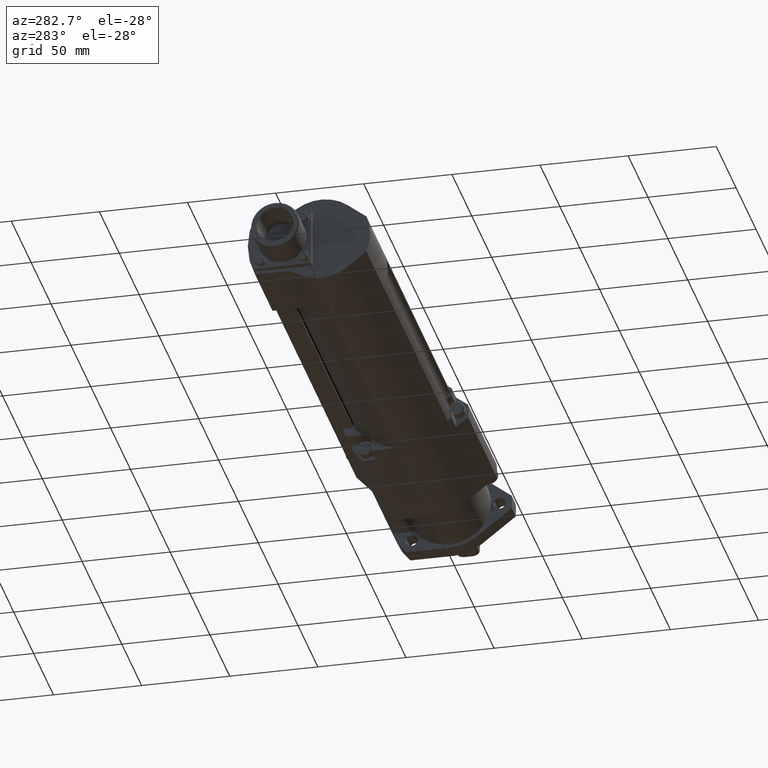
[diagram: clean part render]
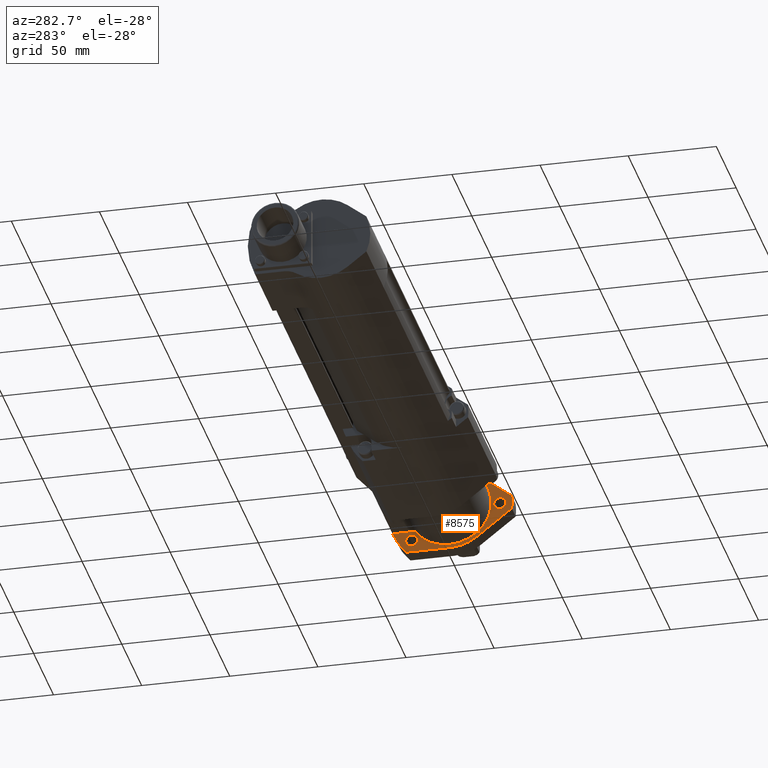
[diagram: same view with one face highlighted and labeled with its STEP entity id]
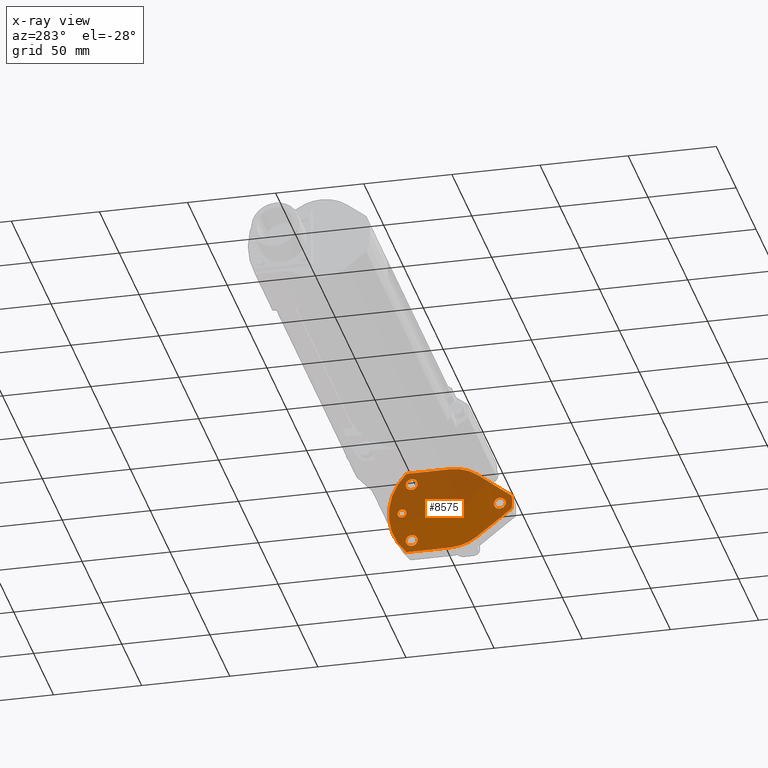
[diagram: x-ray of the same camera — body ghosted, the highlighted face saturated]
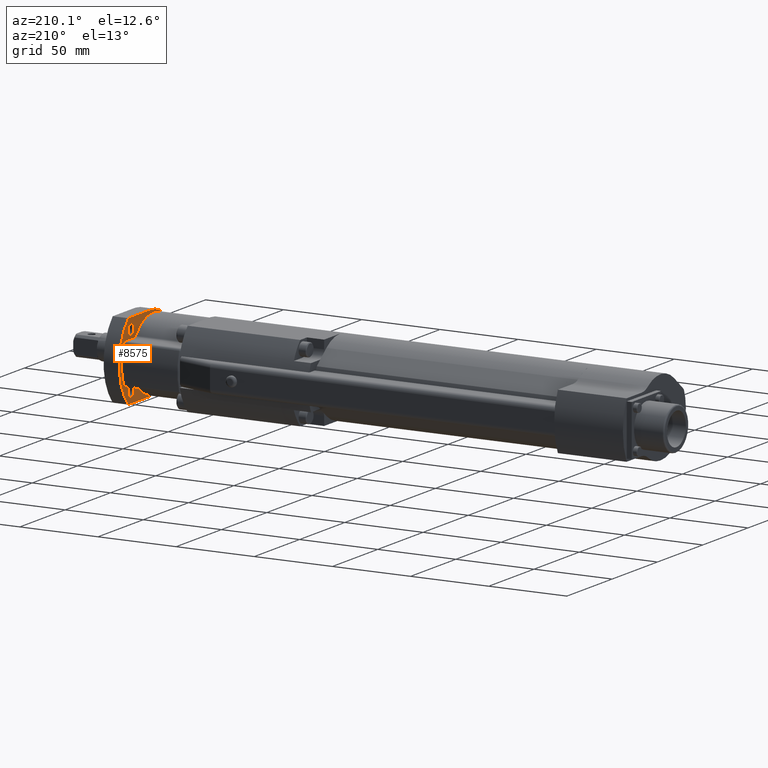
[diagram: same view with one face highlighted and labeled with its STEP entity id]
A machine part, auxiliary view. The second image highlights one B-rep face of the part: STEP entity #8575.
The next image is the same camera in x-ray: the body ghosted, the highlighted face saturated — about 49% of this face is hidden behind the body in this view.
A second angle (auxiliary view) of the same face is appended — the face is thin or edge-on in the first view.
In plain terms, the highlighted planar face has unit normal (-1, 0, 0).
Its self-contained STEP definition (entity closure, byte-faithful):
#27 = EDGE_LOOP ( 'NONE', ( #1205, #4980 ) ) ;
#102 = CIRCLE ( 'NONE', #8776, 35.00000000000000000 ) ;
#265 = VERTEX_POINT ( 'NONE', #2433 ) ;
#348 = EDGE_CURVE ( 'NONE', #5478, #7927, #7594, .T. ) ;
#368 = DIRECTION ( 'NONE',  ( -1.000000000000000000, 0.0000000000000000000, 0.0000000000000000000 ) ) ;
#407 = CIRCLE ( 'NONE', #7169, 3.399999999999996800 ) ;
#409 = VERTEX_POINT ( 'NONE', #604 ) ;
#445 = CARTESIAN_POINT ( 'NONE',  ( -10.00000000000000000, 0.0000000000000000000, -24.50000000000000000 ) ) ;
#451 = CARTESIAN_POINT ( 'NONE',  ( -10.00000000000000000, 27.50000000000000000, 0.0000000000000000000 ) ) ;
#462 = AXIS2_PLACEMENT_3D ( 'NONE', #8404, #4073, #9112 ) ;
#559 = CARTESIAN_POINT ( 'NONE',  ( -10.00000000000000000, -34.78003453779442800, -3.917805195492370300 ) ) ;
#601 = EDGE_CURVE ( 'NONE', #4804, #2641, #7945, .T. ) ;
#604 = CARTESIAN_POINT ( 'NONE',  ( -10.00000000000000000, 0.0000000000000000000, 24.50000000000000400 ) ) ;
#605 = DIRECTION ( 'NONE',  ( 1.000000000000000000, -0.0000000000000000000, -0.0000000000000000000 ) ) ;
#630 = CARTESIAN_POINT ( 'NONE',  ( -10.00000000000000000, -28.00000000000000000, 3.399999999999993700 ) ) ;
#946 = EDGE_CURVE ( 'NONE', #2018, #5226, #3061, .T. ) ;
#987 = ORIENTED_EDGE ( 'NONE', *, *, #2763, .T. ) ;
#1016 = PLANE ( 'NONE',  #5037 ) ;
#1148 = ORIENTED_EDGE ( 'NONE', *, *, #2154, .T. ) ;
#1179 = DIRECTION ( 'NONE',  ( 0.0000000000000000000, 0.0000000000000000000, -1.000000000000000000 ) ) ;
#1205 = ORIENTED_EDGE ( 'NONE', *, *, #946, .T. ) ;
#1291 = LINE ( 'NONE', #8154, #6778 ) ;
#1342 = CARTESIAN_POINT ( 'NONE',  ( -10.00000000000000000, -28.00000000000000000, -3.400000000000000400 ) ) ;
#1467 = CARTESIAN_POINT ( 'NONE',  ( -10.00000000000000000, 22.00000000000000000, -20.89999999999999500 ) ) ;
#1508 = ORIENTED_EDGE ( 'NONE', *, *, #4577, .T. ) ;
#1676 = EDGE_CURVE ( 'NONE', #7927, #8126, #102, .T. ) ;
#1690 = DIRECTION ( 'NONE',  ( 1.000000000000000000, -0.0000000000000000000, -0.0000000000000000000 ) ) ;
#1723 = DIRECTION ( 'NONE',  ( -1.000000000000000000, 0.0000000000000000000, 0.0000000000000000000 ) ) ;
#1819 = CARTESIAN_POINT ( 'NONE',  ( -10.00000000000000000, -34.78003453779442800, -3.917805195492370300 ) ) ;
#1836 = CARTESIAN_POINT ( 'NONE',  ( -10.00000000000000000, 0.0000000000000000000, 0.0000000000000000000 ) ) ;
#1847 = CIRCLE ( 'NONE', #6932, 35.00000000000000700 ) ;
#1854 = EDGE_CURVE ( 'NONE', #5226, #2018, #407, .T. ) ;
#1880 = AXIS2_PLACEMENT_3D ( 'NONE', #5982, #1690, #6717 ) ;
#1889 = EDGE_CURVE ( 'NONE', #265, #6668, #1847, .T. ) ;
#1919 = CARTESIAN_POINT ( 'NONE',  ( -10.00000000000000000, 0.0000000000000000000, 0.0000000000000000000 ) ) ;
#1925 = FACE_BOUND ( 'NONE', #3561, .T. ) ;
#1934 = DIRECTION ( 'NONE',  ( 1.000000000000000000, -0.0000000000000000000, -0.0000000000000000000 ) ) ;
#1937 = CARTESIAN_POINT ( 'NONE',  ( -10.00000000000000000, 27.50000000000000000, 2.499999999999998700 ) ) ;
#1944 = DIRECTION ( 'NONE',  ( 1.000000000000000000, -0.0000000000000000000, -0.0000000000000000000 ) ) ;
#2018 = VERTEX_POINT ( 'NONE', #5571 ) ;
#2033 = EDGE_CURVE ( 'NONE', #4833, #6675, #6470, .T. ) ;
#2072 = CARTESIAN_POINT ( 'NONE',  ( -10.00000000000000000, -34.78003453779448500, 3.917805195491889800 ) ) ;
#2076 = AXIS2_PLACEMENT_3D ( 'NONE', #3823, #8869, #4542 ) ;
#2154 = EDGE_CURVE ( 'NONE', #7498, #7171, #5323, .T. ) ;
#2165 = DIRECTION ( 'NONE',  ( -1.000000000000000000, 0.0000000000000000000, 0.0000000000000000000 ) ) ;
#2269 = CARTESIAN_POINT ( 'NONE',  ( -10.00000000000000000, 22.00000000000000000, -14.10000000000000100 ) ) ;
#2341 = ORIENTED_EDGE ( 'NONE', *, *, #348, .T. ) ;
#2433 = CARTESIAN_POINT ( 'NONE',  ( -10.00000000000000000, 24.99499949989998600, 24.50000000000000000 ) ) ;
#2438 = DIRECTION ( 'NONE',  ( 1.000000000000000000, -0.0000000000000000000, -0.0000000000000000000 ) ) ;
#2479 = CARTESIAN_POINT ( 'NONE',  ( -10.00000000000000000, 22.00000000000000000, 20.90000000000000200 ) ) ;
#2525 = VERTEX_POINT ( 'NONE', #6917 ) ;
#2541 = DIRECTION ( 'NONE',  ( 0.0000000000000000000, 0.0000000000000000000, 1.000000000000000000 ) ) ;
#2637 = DIRECTION ( 'NONE',  ( 0.0000000000000000000, 0.0000000000000000000, 1.000000000000000000 ) ) ;
#2641 = VERTEX_POINT ( 'NONE', #630 ) ;
#2763 = EDGE_CURVE ( 'NONE', #2525, #409, #4622, .T. ) ;
#3012 = CARTESIAN_POINT ( 'NONE',  ( -10.00000000000000000, 0.0000000000000000000, -24.50000000000000000 ) ) ;
#3036 = ORIENTED_EDGE ( 'NONE', *, *, #601, .T. ) ;
#3061 = CIRCLE ( 'NONE', #462, 3.399999999999996800 ) ;
#3114 = EDGE_CURVE ( 'NONE', #409, #265, #1291, .T. ) ;
#3363 = ORIENTED_EDGE ( 'NONE', *, *, #1889, .T. ) ;
#3385 = LINE ( 'NONE', #445, #5074 ) ;
#3390 = FACE_BOUND ( 'NONE', #27, .T. ) ;
#3561 = EDGE_LOOP ( 'NONE', ( #3036, #4448 ) ) ;
#3747 = VECTOR ( 'NONE', #7589, 1000.000000000000100 ) ;
#3823 = CARTESIAN_POINT ( 'NONE',  ( -10.00000000000000000, -28.00000000000000000, -3.429011037612587700E-015 ) ) ;
#3911 = ORIENTED_EDGE ( 'NONE', *, *, #3114, .T. ) ;
#3997 = CIRCLE ( 'NONE', #1880, 3.399999999999996800 ) ;
#4073 = DIRECTION ( 'NONE',  ( 1.000000000000000000, -0.0000000000000000000, -0.0000000000000000000 ) ) ;
#4172 = CARTESIAN_POINT ( 'NONE',  ( -10.00000000000000000, 27.50000000000000000, -2.499999999999998700 ) ) ;
#4280 = AXIS2_PLACEMENT_3D ( 'NONE', #6485, #2165, #7219 ) ;
#4448 = ORIENTED_EDGE ( 'NONE', *, *, #7700, .T. ) ;
#4542 = DIRECTION ( 'NONE',  ( 0.0000000000000000000, 0.0000000000000000000, -1.000000000000000000 ) ) ;
#4577 = EDGE_CURVE ( 'NONE', #7171, #7498, #3997, .T. ) ;
#4622 = CIRCLE ( 'NONE', #4280, 24.50000000000000400 ) ;
#4636 = CARTESIAN_POINT ( 'NONE',  ( -10.00000000000000000, 0.0000000000000000000, 0.0000000000000000000 ) ) ;
#4701 = EDGE_LOOP ( 'NONE', ( #1148, #1508 ) ) ;
#4804 = VERTEX_POINT ( 'NONE', #1342 ) ;
#4833 = VERTEX_POINT ( 'NONE', #4172 ) ;
#4877 = CARTESIAN_POINT ( 'NONE',  ( -10.00000000000000000, 27.50000000000000000, 0.0000000000000000000 ) ) ;
#4980 = ORIENTED_EDGE ( 'NONE', *, *, #1854, .T. ) ;
#5037 = AXIS2_PLACEMENT_3D ( 'NONE', #8186, #1723, #6751 ) ;
#5074 = VECTOR ( 'NONE', #9042, 1000.000000000000000 ) ;
#5078 = FACE_BOUND ( 'NONE', #4701, .T. ) ;
#5226 = VERTEX_POINT ( 'NONE', #2479 ) ;
#5323 = CIRCLE ( 'NONE', #8202, 3.399999999999996800 ) ;
#5368 = DIRECTION ( 'NONE',  ( 0.0000000000000000000, 0.0000000000000000000, 1.000000000000000000 ) ) ;
#5374 = ORIENTED_EDGE ( 'NONE', *, *, #1676, .T. ) ;
#5468 = DIRECTION ( 'NONE',  ( 1.000000000000000000, -0.0000000000000000000, -0.0000000000000000000 ) ) ;
#5478 = VERTEX_POINT ( 'NONE', #5646 ) ;
#5525 = FACE_OUTER_BOUND ( 'NONE', #6801, .T. ) ;
#5571 = CARTESIAN_POINT ( 'NONE',  ( -10.00000000000000000, 22.00000000000000000, 14.10000000000000900 ) ) ;
#5605 = DIRECTION ( 'NONE',  ( 0.0000000000000000000, 0.0000000000000000000, -1.000000000000000000 ) ) ;
#5646 = CARTESIAN_POINT ( 'NONE',  ( -10.00000000000000000, -15.08370614547851600, -19.30626346336477900 ) ) ;
#5720 = EDGE_CURVE ( 'NONE', #7644, #5478, #9044, .T. ) ;
#5856 = ORIENTED_EDGE ( 'NONE', *, *, #7870, .T. ) ;
#5982 = CARTESIAN_POINT ( 'NONE',  ( -10.00000000000000000, 22.00000000000000000, -17.49999999999999600 ) ) ;
#6049 = EDGE_CURVE ( 'NONE', #6675, #4833, #8056, .T. ) ;
#6072 = EDGE_LOOP ( 'NONE', ( #8225, #8519 ) ) ;
#6230 = CARTESIAN_POINT ( 'NONE',  ( -10.00000000000000000, 22.00000000000000000, -17.49999999999999600 ) ) ;
#6247 = CARTESIAN_POINT ( 'NONE',  ( -10.00000000000000000, -28.00000000000000000, -3.429011037612587700E-015 ) ) ;
#6351 = DIRECTION ( 'NONE',  ( 0.0000000000000000000, 0.7880107536067168000, 0.6156614753256649500 ) ) ;
#6470 = CIRCLE ( 'NONE', #8860, 2.499999999999998700 ) ;
#6485 = CARTESIAN_POINT ( 'NONE',  ( -10.00000000000000000, 0.0000000000000000000, 0.0000000000000000000 ) ) ;
#6509 = ORIENTED_EDGE ( 'NONE', *, *, #8985, .T. ) ;
#6668 = VERTEX_POINT ( 'NONE', #6942 ) ;
#6675 = VERTEX_POINT ( 'NONE', #1937 ) ;
#6717 = DIRECTION ( 'NONE',  ( 0.0000000000000000000, 0.0000000000000000000, -1.000000000000000000 ) ) ;
#6751 = DIRECTION ( 'NONE',  ( 0.0000000000000000000, 0.0000000000000000000, 1.000000000000000000 ) ) ;
#6764 = CARTESIAN_POINT ( 'NONE',  ( -10.00000000000000000, 22.00000000000000000, 17.50000000000000400 ) ) ;
#6778 = VECTOR ( 'NONE', #7425, 1000.000000000000000 ) ;
#6801 = EDGE_LOOP ( 'NONE', ( #5374, #6509, #987, #3911, #3363, #5856, #7499, #2341 ) ) ;
#6822 = CARTESIAN_POINT ( 'NONE',  ( -10.00000000000000000, -34.78003453779448500, 3.917805195491889800 ) ) ;
#6869 = DIRECTION ( 'NONE',  ( -1.000000000000000000, 0.0000000000000000000, 0.0000000000000000000 ) ) ;
#6917 = CARTESIAN_POINT ( 'NONE',  ( -10.00000000000000000, -15.08370614547879500, 19.30626346336456600 ) ) ;
#6932 = AXIS2_PLACEMENT_3D ( 'NONE', #4636, #368, #5368 ) ;
#6942 = CARTESIAN_POINT ( 'NONE',  ( -10.00000000000000000, 24.99499949989999000, -24.50000000000000000 ) ) ;
#6959 = DIRECTION ( 'NONE',  ( -1.000000000000000000, 0.0000000000000000000, 0.0000000000000000000 ) ) ;
#6968 = DIRECTION ( 'NONE',  ( 0.0000000000000000000, 0.0000000000000000000, -1.000000000000000000 ) ) ;
#6983 = DIRECTION ( 'NONE',  ( 0.0000000000000000000, 0.0000000000000000000, -1.000000000000000000 ) ) ;
#6991 = LINE ( 'NONE', #2072, #9120 ) ;
#7169 = AXIS2_PLACEMENT_3D ( 'NONE', #6764, #2438, #7500 ) ;
#7171 = VERTEX_POINT ( 'NONE', #2269 ) ;
#7219 = DIRECTION ( 'NONE',  ( 0.0000000000000000000, 0.0000000000000000000, 1.000000000000000000 ) ) ;
#7242 = FACE_BOUND ( 'NONE', #6072, .T. ) ;
#7425 = DIRECTION ( 'NONE',  ( 0.0000000000000000000, 1.000000000000000000, 0.0000000000000000000 ) ) ;
#7498 = VERTEX_POINT ( 'NONE', #1467 ) ;
#7499 = ORIENTED_EDGE ( 'NONE', *, *, #5720, .T. ) ;
#7500 = DIRECTION ( 'NONE',  ( 0.0000000000000000000, 0.0000000000000000000, -1.000000000000000000 ) ) ;
#7589 = DIRECTION ( 'NONE',  ( -0.0000000000000000000, -0.7880107536067253400, 0.6156614753256539600 ) ) ;
#7594 = LINE ( 'NONE', #1819, #3747 ) ;
#7644 = VERTEX_POINT ( 'NONE', #3012 ) ;
#7700 = EDGE_CURVE ( 'NONE', #2641, #4804, #8918, .T. ) ;
#7755 = AXIS2_PLACEMENT_3D ( 'NONE', #1836, #6869, #2541 ) ;
#7870 = EDGE_CURVE ( 'NONE', #6668, #7644, #3385, .T. ) ;
#7878 = AXIS2_PLACEMENT_3D ( 'NONE', #451, #5468, #1179 ) ;
#7927 = VERTEX_POINT ( 'NONE', #559 ) ;
#7945 = CIRCLE ( 'NONE', #8710, 3.399999999999996800 ) ;
#8056 = CIRCLE ( 'NONE', #7878, 2.499999999999998700 ) ;
#8126 = VERTEX_POINT ( 'NONE', #6822 ) ;
#8154 = CARTESIAN_POINT ( 'NONE',  ( -10.00000000000000000, 0.0000000000000000000, 24.50000000000000000 ) ) ;
#8186 = CARTESIAN_POINT ( 'NONE',  ( -10.00000000000000000, 0.0000000000000000000, 0.0000000000000000000 ) ) ;
#8202 = AXIS2_PLACEMENT_3D ( 'NONE', #6230, #1934, #6968 ) ;
#8225 = ORIENTED_EDGE ( 'NONE', *, *, #2033, .T. ) ;
#8404 = CARTESIAN_POINT ( 'NONE',  ( -10.00000000000000000, 22.00000000000000000, 17.50000000000000400 ) ) ;
#8519 = ORIENTED_EDGE ( 'NONE', *, *, #6049, .T. ) ;
#8575 = ADVANCED_FACE ( 'NONE', ( #7242, #5078, #3390, #1925, #5525 ), #1016, .T. ) ;
#8710 = AXIS2_PLACEMENT_3D ( 'NONE', #6247, #1944, #6983 ) ;
#8776 = AXIS2_PLACEMENT_3D ( 'NONE', #1919, #6959, #2637 ) ;
#8860 = AXIS2_PLACEMENT_3D ( 'NONE', #4877, #605, #5605 ) ;
#8869 = DIRECTION ( 'NONE',  ( 1.000000000000000000, -0.0000000000000000000, -0.0000000000000000000 ) ) ;
#8918 = CIRCLE ( 'NONE', #2076, 3.399999999999996800 ) ;
#8985 = EDGE_CURVE ( 'NONE', #8126, #2525, #6991, .T. ) ;
#9042 = DIRECTION ( 'NONE',  ( -0.0000000000000000000, -1.000000000000000000, -0.0000000000000000000 ) ) ;
#9044 = CIRCLE ( 'NONE', #7755, 24.50000000000000000 ) ;
#9112 = DIRECTION ( 'NONE',  ( 0.0000000000000000000, 0.0000000000000000000, -1.000000000000000000 ) ) ;
#9120 = VECTOR ( 'NONE', #6351, 1000.000000000000000 ) ;